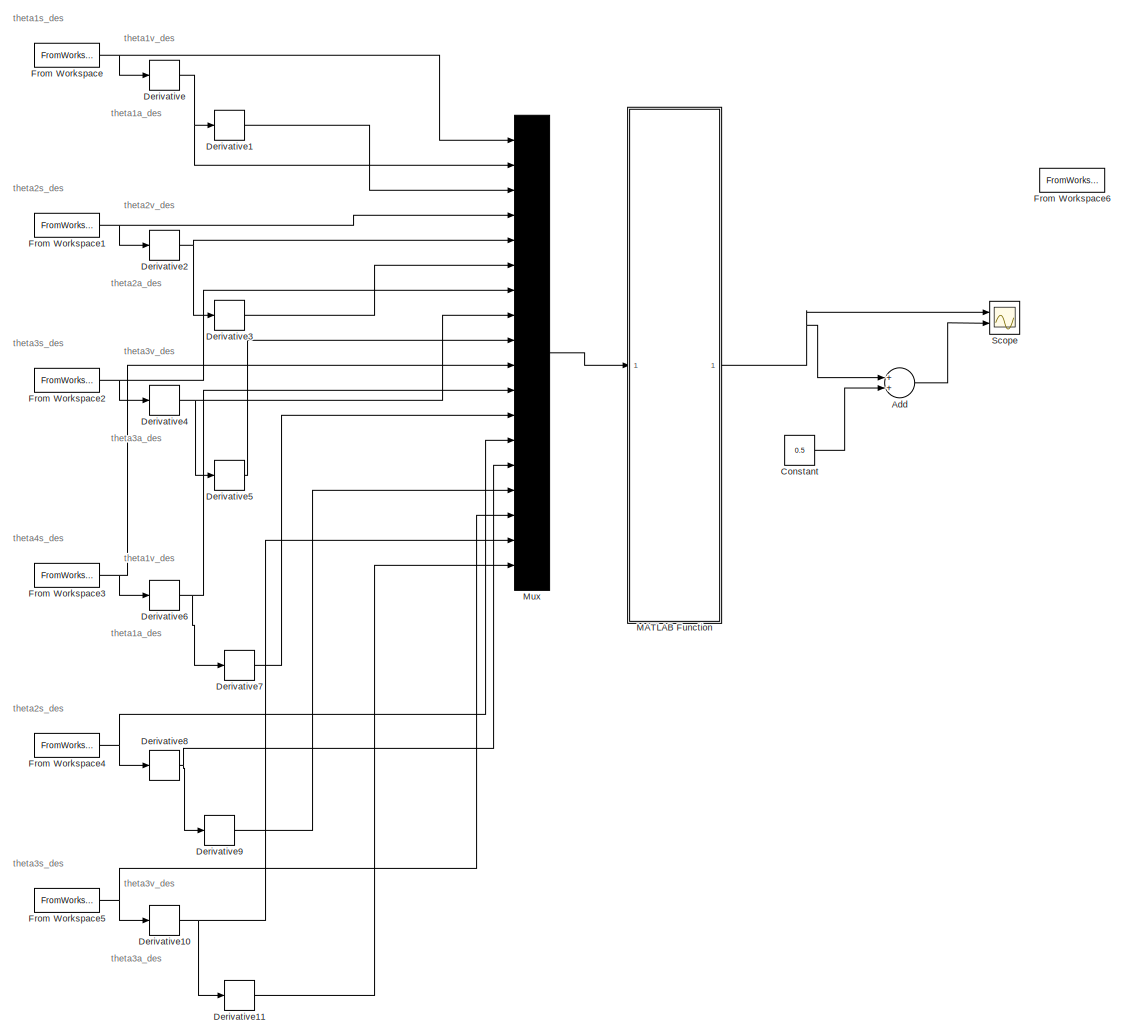
[diagram: root canvas - part 1/1, most of the canvas]
MODEL slx_1cb89a0bfc9c
KIND model
CONFIG AbsTol = auto
CONFIG EnableMultiTasking = off
CONFIG FixedStep = auto
CONFIG InitFcn = ur5_trajectory2
CONFIG MaxStep = auto
CONFIG MinStep = auto
CONFIG RelTol = 1e-3
CONFIG SampleTimeConstraint = Unconstrained
CONFIG Solver = VariableStepAuto
CONFIG SolverName = VariableStepAuto
CONFIG StartTime = 0.0
CONFIG StopTime = 40
BLOCK [Sum] Add
  InputSameDT = off
  OutDataTypeStr = Inherit: Inherit via internal rule
  Ports = [2, 1]
  SaturateOnIntegerOverflow = off
BLOCK [Constant] Constant
  Value = 0.5
BLOCK [Derivative] Derivative
BLOCK [Derivative] Derivative1
BLOCK [Derivative] Derivative10
BLOCK [Derivative] Derivative11
BLOCK [Derivative] Derivative2
BLOCK [Derivative] Derivative3
BLOCK [Derivative] Derivative4
BLOCK [Derivative] Derivative5
BLOCK [Derivative] Derivative6
BLOCK [Derivative] Derivative7
BLOCK [Derivative] Derivative8
BLOCK [Derivative] Derivative9
BLOCK [FromWorkspace] From Workspace
  SampleTime = 0
  VariableName = signal1
  ZeroCross = on
BLOCK [FromWorkspace] From Workspace1
  SampleTime = 0
  VariableName = signal2
  ZeroCross = on
BLOCK [FromWorkspace] From Workspace2
  SampleTime = 0
  VariableName = signal3
  ZeroCross = on
BLOCK [FromWorkspace] From Workspace3
  SampleTime = 0
  VariableName = signal4
  ZeroCross = on
BLOCK [FromWorkspace] From Workspace4
  SampleTime = 0
  VariableName = signal5
  ZeroCross = on
BLOCK [FromWorkspace] From Workspace5
  SampleTime = 0
  VariableName = signal6
  ZeroCross = on
BLOCK [FromWorkspace] From Workspace6
  SampleTime = 0
  VariableName = torques(1)
  ZeroCross = on
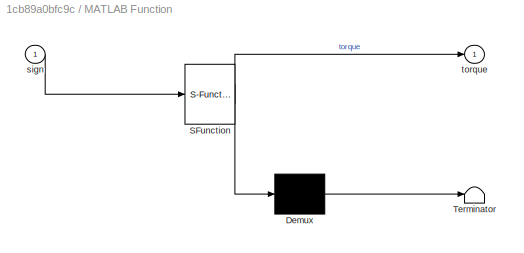
BLOCK [SubSystem] MATLAB Function
  ErrorFcn = Stateflow.Translate.translate
  PermitHierarchicalResolution = ExplicitOnly
  Ports = [1, 1]
  RequestExecContextInheritance = off
  SFBlockType = MATLAB Function
  TreatAsAtomicUnit = on
BLOCK [Demux] MATLAB Function/ Demux 
  Outputs = 1
  Ports = [1, 1]
BLOCK [S-Function] MATLAB Function/ SFunction 
  EnableBusSupport = on
  FunctionName = sf_sfun
  PortCounts = [1 2]
  Ports = [1, 2]
  SFcnIsStateOwnerBlock = off
  SFunctionDeploymentMode = off
  Tag = Stateflow S-Function control 2
BLOCK [Terminator] MATLAB Function/ Terminator 
BLOCK [Inport] MATLAB Function/sign
  IconDisplay = Port number
BLOCK [Outport] MATLAB Function/torque
  IconDisplay = Port number
BLOCK [Mux] Mux
  DisplayOption = bar
  Inputs = 18
  Ports = [18, 1]
BLOCK [Scope] Scope
  Floating = off
  NumInputPorts = 2
  Ports = [2]
  ScopeSpecificationString = Simulink.scopes.TimeScopeBlockCfg('CurrentConfiguration', extmgr.ConfigurationSet(extmgr.Configuration('Core','General UI',true),extmgr.Configuration('Core','Source UI',true),extmgr.Configuration('Sources','WiredSimulink',true),extmgr.Configuration('Visuals','Time Domain',true,'SerializedDisplays',{struct('MinYLimReal','-0.66323','MaxYLimReal','2.70063','YLabelReal','','MinYLimMag','0.00000','MaxY...<+1374ch>
ANNOTATION (root): theta1a_des
ANNOTATION (root): theta1s_des
ANNOTATION (root): theta1v_des
ANNOTATION (root): theta2a_des
ANNOTATION (root): theta2s_des
ANNOTATION (root): theta2v_des
ANNOTATION (root): theta3a_des
ANNOTATION (root): theta3s_des
ANNOTATION (root): theta3v_des
ANNOTATION (root): theta4s_des
LINE Add:1 -> Scope:2
LINE Constant:1 -> Add:2
NET Derivative10:1 -> Derivative11:1, Mux:17
LINE Derivative11:1 -> Mux:18
LINE Derivative1:1 -> Mux:3
NET Derivative2:1 -> Derivative3:1, Mux:5
LINE Derivative3:1 -> Mux:6
NET Derivative4:1 -> Derivative5:1, Mux:8
LINE Derivative5:1 -> Mux:9
NET Derivative6:1 -> Derivative7:1, Mux:11
LINE Derivative7:1 -> Mux:12
NET Derivative8:1 -> Derivative9:1, Mux:14
LINE Derivative9:1 -> Mux:15
NET Derivative:1 -> Derivative1:1, Mux:2
NET From Workspace1:1 -> Derivative2:1, Mux:4
NET From Workspace2:1 -> Derivative4:1, Mux:7
NET From Workspace3:1 -> Derivative6:1, Mux:10
NET From Workspace4:1 -> Derivative8:1, Mux:13
NET From Workspace5:1 -> Derivative10:1, Mux:16
NET From Workspace:1 -> Derivative:1, Mux:1
NET MATLAB Function:1 -> Add:1, Scope:1
LINE Mux:1 -> MATLAB Function:1
note: NET lines group one-source signal fan-out (src -> all destinations, sorted); 1:1 wires keep LINE
CHART MATLAB Function states=1 transitions=1
  STATE_LABEL 'eML_blk_kernel()'
  STATE_LABEL 'SCRIPT:\nfunction torque = fcn(sign)\ntheta1 = sign(1);\ntheta1_v = sign(2);\ntheta1_a = sign(3);\n\ntheta2 = sign(4);\ntheta2_v = sign(5);\ntheta2_a = sign(6);\n\ntheta3 = sign(7);\ntheta3_v = sign(8);\ntheta3_a = sign(9);\n\ntheta4 = sign(10);\ntheta4_v = sign(11);\ntheta4_a = sign(12);\n\ntheta5 = sign(13);\ntheta5_v = sign(14);\ntheta5_a = sign(15);\n\ntheta6 = sign(16);\ntheta6_v = sign(17);\ntheta6_a = sign(18);\nto...<+3608ch>'
